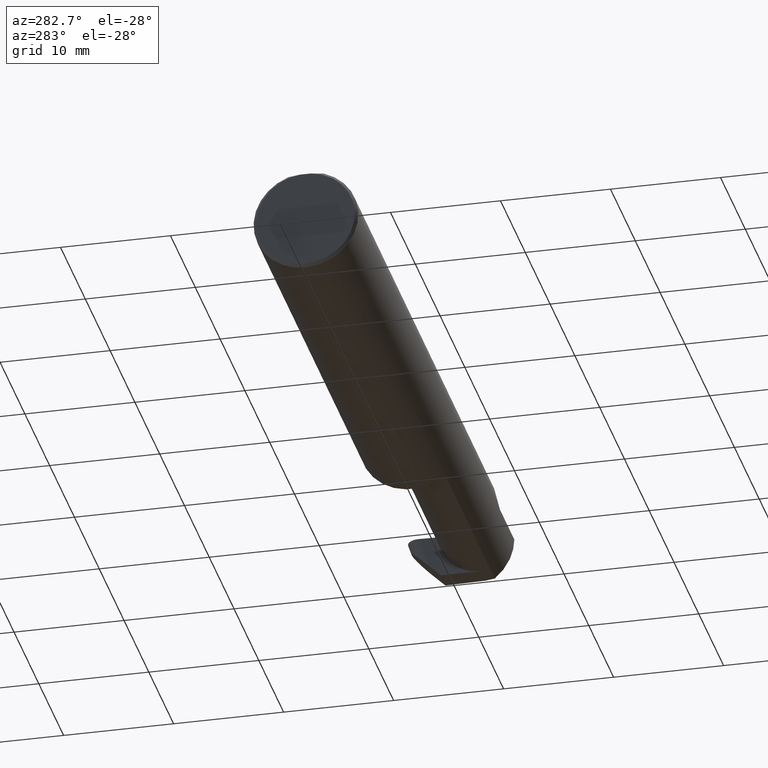
[diagram: clean part render]
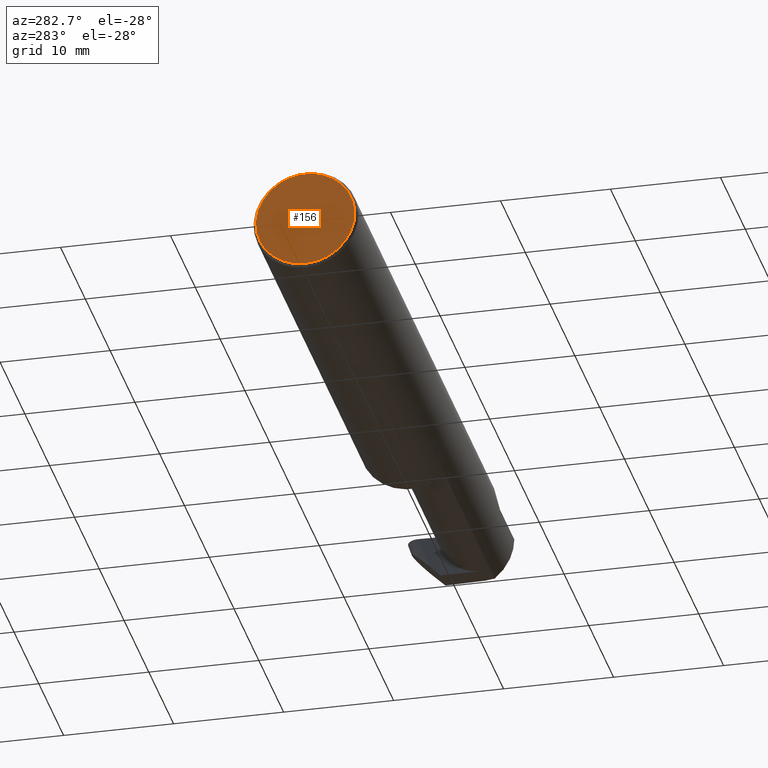
[diagram: same view with one face highlighted and labeled with its STEP entity id]
A machine part, auxiliary view. The second image highlights one B-rep face of the part: STEP entity #156.
In plain terms, the highlighted planar face has unit normal (1, 0, 0).
Its self-contained STEP definition (entity closure, byte-faithful):
#20 = AXIS2_PLACEMENT_3D ( 'NONE', #331, #284, #607 ) ;
#32 = CARTESIAN_POINT ( 'NONE',  ( 0.000000000000000000, 0.000000000000000000, -0.1773499999999999521 ) ) ;
#48 = DIRECTION ( 'NONE',  ( -0.000000000000000000, 1.000000000000000000, -0.000000000000000000 ) ) ;
#68 = AXIS2_PLACEMENT_3D ( 'NONE', #360, #521, #629 ) ;
#71 = EDGE_LOOP ( 'NONE', ( #695, #311, #410 ) ) ;
#111 = VERTEX_POINT ( 'NONE', #419 ) ;
#149 = CARTESIAN_POINT ( 'NONE',  ( 0.000000000000000000, -0.01880691362238934641, 0.1763499999999999235 ) ) ;
#156 = ADVANCED_FACE ( 'NONE', ( #547 ), #491, .F. ) ;
#169 = VECTOR ( 'NONE', #48, 39.37007874015748143 ) ;
#188 = EDGE_CURVE ( 'NONE', #527, #111, #212, .T. ) ;
#212 = LINE ( 'NONE', #369, #169 ) ;
#214 = DIRECTION ( 'NONE',  ( 0.000000000000000000, 0.000000000000000000, -1.000000000000000000 ) ) ;
#284 = DIRECTION ( 'NONE',  ( -1.000000000000000000, -0.000000000000000000, -0.000000000000000000 ) ) ;
#311 = ORIENTED_EDGE ( 'NONE', *, *, #396, .T. ) ;
#331 = CARTESIAN_POINT ( 'NONE',  ( 0.000000000000000000, 0.000000000000000000, 0.000000000000000000 ) ) ;
#360 = CARTESIAN_POINT ( 'NONE',  ( 0.000000000000000000, 0.000000000000000000, 0.000000000000000000 ) ) ;
#369 = CARTESIAN_POINT ( 'NONE',  ( 0.000000000000000000, 0.1873499999999998500, 0.1763499999999999235 ) ) ;
#375 = CIRCLE ( 'NONE', #68, 0.1773499999999999521 ) ;
#396 = EDGE_CURVE ( 'NONE', #111, #549, #375, .T. ) ;
#410 = ORIENTED_EDGE ( 'NONE', *, *, #644, .T. ) ;
#419 = CARTESIAN_POINT ( 'NONE',  ( 0.000000000000000000, 0.01880691362238934988, 0.1763499999999999235 ) ) ;
#491 = PLANE ( 'NONE',  #651 ) ;
#521 = DIRECTION ( 'NONE',  ( -1.000000000000000000, -0.000000000000000000, -0.000000000000000000 ) ) ;
#527 = VERTEX_POINT ( 'NONE', #149 ) ;
#529 = CIRCLE ( 'NONE', #20, 0.1773499999999999521 ) ;
#547 = FACE_OUTER_BOUND ( 'NONE', #71, .T. ) ;
#549 = VERTEX_POINT ( 'NONE', #32 ) ;
#607 = DIRECTION ( 'NONE',  ( 0.000000000000000000, 0.000000000000000000, -1.000000000000000000 ) ) ;
#629 = DIRECTION ( 'NONE',  ( 0.000000000000000000, 0.000000000000000000, -1.000000000000000000 ) ) ;
#642 = CARTESIAN_POINT ( 'NONE',  ( 0.000000000000000000, 0.000000000000000000, 0.000000000000000000 ) ) ;
#644 = EDGE_CURVE ( 'NONE', #549, #527, #529, .T. ) ;
#651 = AXIS2_PLACEMENT_3D ( 'NONE', #642, #704, #214 ) ;
#695 = ORIENTED_EDGE ( 'NONE', *, *, #188, .T. ) ;
#704 = DIRECTION ( 'NONE',  ( 1.000000000000000000, 0.000000000000000000, 0.000000000000000000 ) ) ;